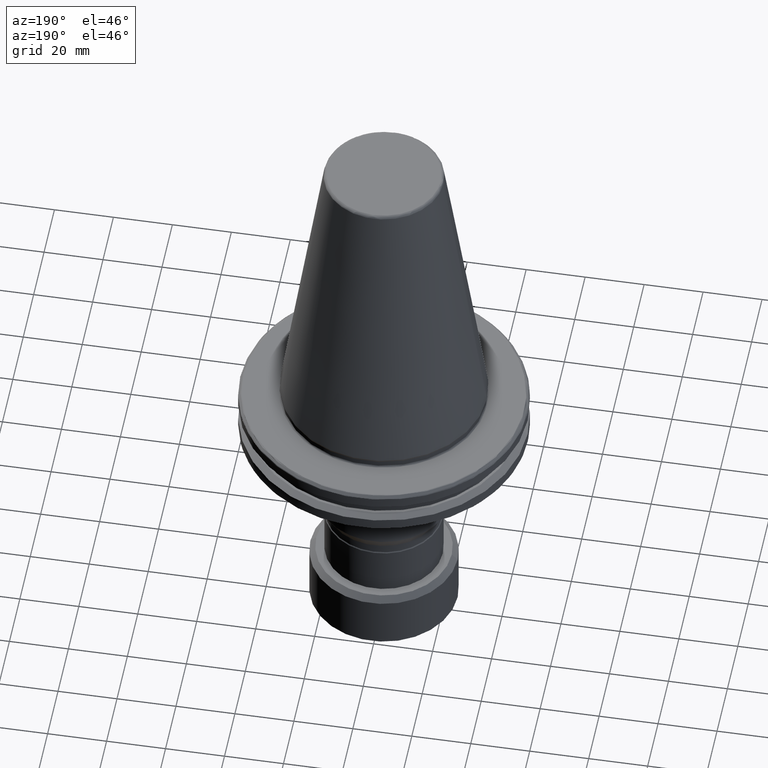
[diagram: clean part render]
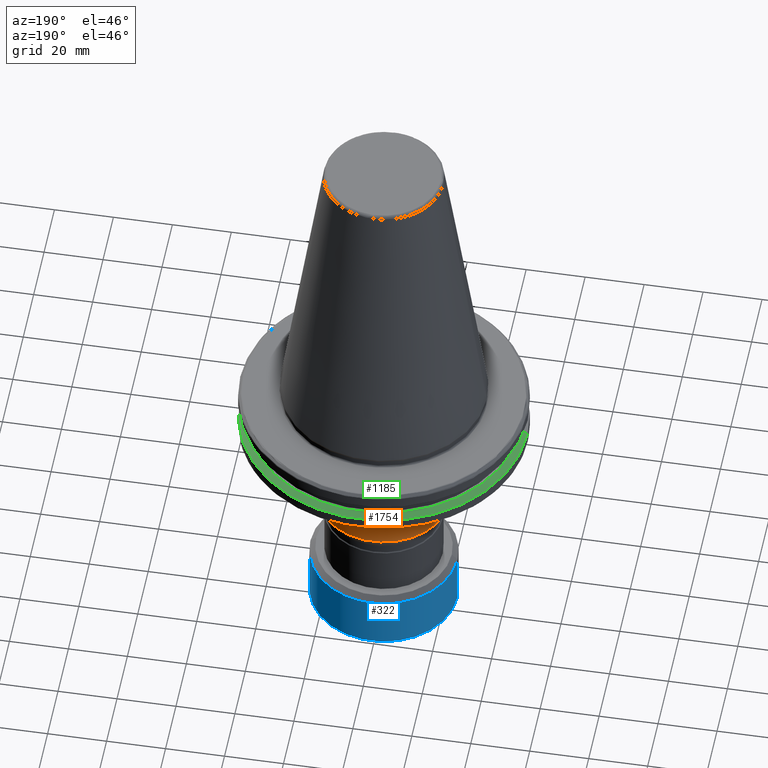
[diagram: same view with three faces highlighted in distinct colors, each labeled with its STEP entity id]
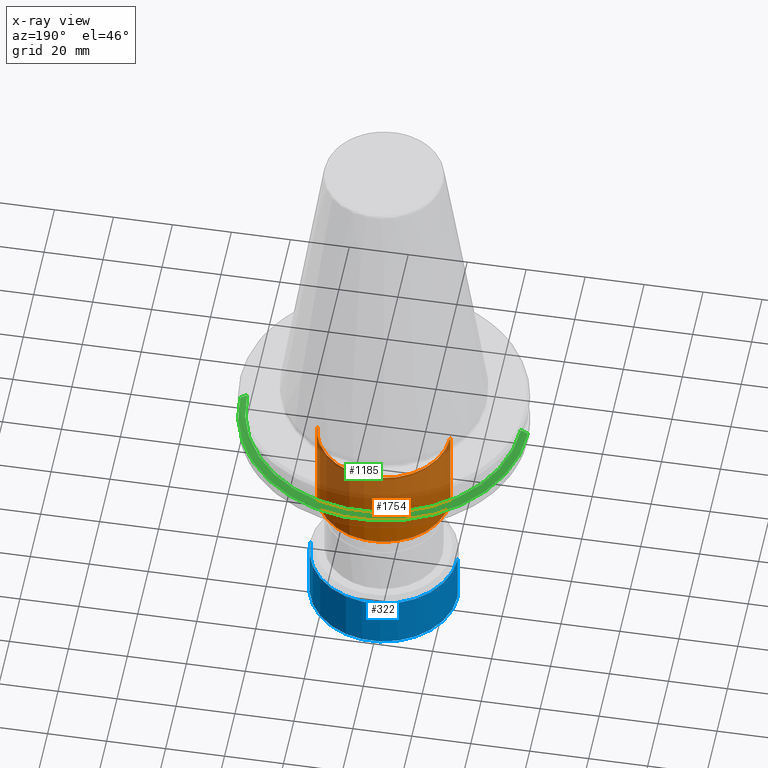
[diagram: x-ray of the same camera — body ghosted, the three highlighted faces saturated]
A machine part, auxiliary view with three faces highlighted in distinct colors.
The next image is the same camera in x-ray (body ghosted, the three faces saturated) — at least one of them is partly hidden behind the body in this view.
Their STEP definitions:

[orange] entity #1754 — the highlighted cylindrical surface (partial cylindrical patch) has radius 22.5 mm, axis along (0, 0, 1).
#187 = VERTEX_POINT ( 'NONE', #3113 ) ;
#190 = VECTOR ( 'NONE', #1882, 1000.000000000000000 ) ;
#224 = CARTESIAN_POINT ( 'NONE',  ( -22.49999999999999300, 2.755455298081543600E-015, -51.80795889508370100 ) ) ;
#272 = CIRCLE ( 'NONE', #1891, 22.49999999999999300 ) ;
#497 = VERTEX_POINT ( 'NONE', #940 ) ;
#641 = EDGE_LOOP ( 'NONE', ( #1877, #2033, #1112, #1954 ) ) ;
#699 = LINE ( 'NONE', #1826, #190 ) ;
#763 = EDGE_CURVE ( 'NONE', #3060, #187, #1778, .T. ) ;
#940 = CARTESIAN_POINT ( 'NONE',  ( 22.49999999999999300, 0.0000000000000000000, -51.80795889508370100 ) ) ;
#1076 = CARTESIAN_POINT ( 'NONE',  ( 0.0000000000000000000, 0.0000000000000000000, -51.80795889508370100 ) ) ;
#1097 = DIRECTION ( 'NONE',  ( -1.000000000000000000, 0.0000000000000000000, 0.0000000000000000000 ) ) ;
#1108 = DIRECTION ( 'NONE',  ( 0.0000000000000000000, 0.0000000000000000000, -1.000000000000000000 ) ) ;
#1112 = ORIENTED_EDGE ( 'NONE', *, *, #763, .T. ) ;
#1160 = VECTOR ( 'NONE', #1787, 1000.000000000000000 ) ;
#1232 = CARTESIAN_POINT ( 'NONE',  ( 0.0000000000000000000, 0.0000000000000000000, -21.10000000000000900 ) ) ;
#1247 = VERTEX_POINT ( 'NONE', #224 ) ;
#1260 = CARTESIAN_POINT ( 'NONE',  ( -22.49999999999999300, 2.755455298081543600E-015, -21.10000000000000900 ) ) ;
#1367 = DIRECTION ( 'NONE',  ( 1.000000000000000000, 0.0000000000000000000, 0.0000000000000000000 ) ) ;
#1499 = AXIS2_PLACEMENT_3D ( 'NONE', #2045, #2015, #2017 ) ;
#1754 = ADVANCED_FACE ( 'NONE', ( #2811 ), #2201, .T. ) ;
#1778 = CIRCLE ( 'NONE', #2359, 22.49999999999998900 ) ;
#1787 = DIRECTION ( 'NONE',  ( 0.0000000000000000000, 0.0000000000000000000, 1.000000000000000000 ) ) ;
#1826 = CARTESIAN_POINT ( 'NONE',  ( -22.49999999999999300, 2.755455298081543600E-015, 88.34764052968309000 ) ) ;
#1836 = CARTESIAN_POINT ( 'NONE',  ( 22.49999999999999300, 0.0000000000000000000, 88.34764052968309000 ) ) ;
#1877 = ORIENTED_EDGE ( 'NONE', *, *, #2900, .T. ) ;
#1882 = DIRECTION ( 'NONE',  ( 0.0000000000000000000, 0.0000000000000000000, 1.000000000000000000 ) ) ;
#1891 = AXIS2_PLACEMENT_3D ( 'NONE', #1076, #2964, #1367 ) ;
#1916 = EDGE_CURVE ( 'NONE', #1247, #3060, #699, .T. ) ;
#1937 = EDGE_CURVE ( 'NONE', #497, #187, #3132, .T. ) ;
#1954 = ORIENTED_EDGE ( 'NONE', *, *, #1937, .F. ) ;
#2015 = DIRECTION ( 'NONE',  ( 0.0000000000000000000, 0.0000000000000000000, 1.000000000000000000 ) ) ;
#2017 = DIRECTION ( 'NONE',  ( 1.000000000000000000, 0.0000000000000000000, 0.0000000000000000000 ) ) ;
#2033 = ORIENTED_EDGE ( 'NONE', *, *, #1916, .T. ) ;
#2045 = CARTESIAN_POINT ( 'NONE',  ( 0.0000000000000000000, 0.0000000000000000000, 88.34764052968309000 ) ) ;
#2201 = CYLINDRICAL_SURFACE ( 'NONE', #1499, 22.49999999999999300 ) ;
#2359 = AXIS2_PLACEMENT_3D ( 'NONE', #1232, #1108, #1097 ) ;
#2811 = FACE_OUTER_BOUND ( 'NONE', #641, .T. ) ;
#2900 = EDGE_CURVE ( 'NONE', #497, #1247, #272, .T. ) ;
#2964 = DIRECTION ( 'NONE',  ( 0.0000000000000000000, 0.0000000000000000000, 1.000000000000000000 ) ) ;
#3060 = VERTEX_POINT ( 'NONE', #1260 ) ;
#3113 = CARTESIAN_POINT ( 'NONE',  ( 22.49999999999999300, 0.0000000000000000000, -21.10000000000000900 ) ) ;
#3132 = LINE ( 'NONE', #1836, #1160 ) ;

[blue] entity #322 — the highlighted cylindrical surface (partial cylindrical patch) has radius 25 mm, axis along (0, 0, 1).
#322 = ADVANCED_FACE ( 'NONE', ( #2904 ), #3288, .T. ) ;
#371 = ORIENTED_EDGE ( 'NONE', *, *, #1617, .T. ) ;
#518 = EDGE_LOOP ( 'NONE', ( #2935, #371, #1082, #1556 ) ) ;
#528 = DIRECTION ( 'NONE',  ( 0.0000000000000000000, 0.0000000000000000000, 1.000000000000000000 ) ) ;
#611 = LINE ( 'NONE', #3074, #2686 ) ;
#719 = DIRECTION ( 'NONE',  ( 1.000000000000000000, 0.0000000000000000000, 0.0000000000000000000 ) ) ;
#800 = DIRECTION ( 'NONE',  ( 1.000000000000000000, 0.0000000000000000000, 0.0000000000000000000 ) ) ;
#830 = DIRECTION ( 'NONE',  ( 0.0000000000000000000, 0.0000000000000000000, 1.000000000000000000 ) ) ;
#833 = CARTESIAN_POINT ( 'NONE',  ( 0.0000000000000000000, 0.0000000000000000000, -97.11324865405191500 ) ) ;
#885 = AXIS2_PLACEMENT_3D ( 'NONE', #1496, #987, #719 ) ;
#987 = DIRECTION ( 'NONE',  ( 0.0000000000000000000, 0.0000000000000000000, 1.000000000000000000 ) ) ;
#1016 = EDGE_CURVE ( 'NONE', #1819, #1495, #2112, .T. ) ;
#1046 = VECTOR ( 'NONE', #528, 1000.000000000000000 ) ;
#1082 = ORIENTED_EDGE ( 'NONE', *, *, #1016, .F. ) ;
#1238 = CARTESIAN_POINT ( 'NONE',  ( 25.00000000000000000, 0.0000000000000000000, 181.9423428149682400 ) ) ;
#1277 = DIRECTION ( 'NONE',  ( -1.000000000000000000, 0.0000000000000000000, 0.0000000000000000000 ) ) ;
#1286 = DIRECTION ( 'NONE',  ( -0.0000000000000000000, -0.0000000000000000000, 1.000000000000000000 ) ) ;
#1289 = CARTESIAN_POINT ( 'NONE',  ( 0.0000000000000000000, 0.0000000000000000000, -78.99999999999995700 ) ) ;
#1495 = VERTEX_POINT ( 'NONE', #3249 ) ;
#1496 = CARTESIAN_POINT ( 'NONE',  ( 0.0000000000000000000, 0.0000000000000000000, 181.9423428149682400 ) ) ;
#1556 = ORIENTED_EDGE ( 'NONE', *, *, #3476, .F. ) ;
#1597 = VERTEX_POINT ( 'NONE', #3184 ) ;
#1617 = EDGE_CURVE ( 'NONE', #1597, #1495, #611, .T. ) ;
#1644 = LINE ( 'NONE', #1238, #1046 ) ;
#1775 = VERTEX_POINT ( 'NONE', #1979 ) ;
#1819 = VERTEX_POINT ( 'NONE', #1933 ) ;
#1933 = CARTESIAN_POINT ( 'NONE',  ( 25.00000000000000000, 0.0000000000000000000, -78.99999999999995700 ) ) ;
#1979 = CARTESIAN_POINT ( 'NONE',  ( 25.00000000000000000, 0.0000000000000000000, -97.11324865405191500 ) ) ;
#1999 = AXIS2_PLACEMENT_3D ( 'NONE', #1289, #1286, #1277 ) ;
#2112 = CIRCLE ( 'NONE', #1999, 25.00000000000000000 ) ;
#2239 = EDGE_CURVE ( 'NONE', #1775, #1597, #3096, .T. ) ;
#2454 = AXIS2_PLACEMENT_3D ( 'NONE', #833, #830, #800 ) ;
#2686 = VECTOR ( 'NONE', #3223, 1000.000000000000000 ) ;
#2904 = FACE_OUTER_BOUND ( 'NONE', #518, .T. ) ;
#2935 = ORIENTED_EDGE ( 'NONE', *, *, #2239, .T. ) ;
#3074 = CARTESIAN_POINT ( 'NONE',  ( -25.00000000000000000, 3.061616997868383000E-015, 181.9423428149682400 ) ) ;
#3096 = CIRCLE ( 'NONE', #2454, 25.00000000000000000 ) ;
#3184 = CARTESIAN_POINT ( 'NONE',  ( -25.00000000000000000, 3.061616997868383000E-015, -97.11324865405191500 ) ) ;
#3223 = DIRECTION ( 'NONE',  ( 0.0000000000000000000, 0.0000000000000000000, 1.000000000000000000 ) ) ;
#3249 = CARTESIAN_POINT ( 'NONE',  ( -25.00000000000000000, 3.061616997868383000E-015, -78.99999999999995700 ) ) ;
#3288 = CYLINDRICAL_SURFACE ( 'NONE', #885, 25.00000000000000000 ) ;
#3476 = EDGE_CURVE ( 'NONE', #1775, #1819, #1644, .T. ) ;

[green] entity #1185 — the highlighted conical surface has half-angle 60 deg.
#22 = CARTESIAN_POINT ( 'NONE',  ( 46.41589653438084900, 5.827230528940886100E-015, -12.99999999999999500 ) ) ;
#36 = VERTEX_POINT ( 'NONE', #22 ) ;
#180 = EDGE_CURVE ( 'NONE', #1635, #1487, #1749, .T. ) ;
#346 = DIRECTION ( 'NONE',  ( -0.0000000000000000000, -0.0000000000000000000, -1.000000000000000000 ) ) ;
#349 = CARTESIAN_POINT ( 'NONE',  ( 0.0000000000000000000, 0.0000000000000000000, -14.34759526419164500 ) ) ;
#353 = EDGE_CURVE ( 'NONE', #1032, #1635, #2821, .T. ) ;
#389 = DIRECTION ( 'NONE',  ( -1.000000000000000000, 0.0000000000000000000, 0.0000000000000000000 ) ) ;
#464 = AXIS2_PLACEMENT_3D ( 'NONE', #349, #346, #2337 ) ;
#567 = VECTOR ( 'NONE', #923, 1000.000000000000000 ) ;
#593 = AXIS2_PLACEMENT_3D ( 'NONE', #2428, #791, #2687 ) ;
#791 = DIRECTION ( 'NONE',  ( 0.0000000000000000000, 0.0000000000000000000, -1.000000000000000000 ) ) ;
#923 = DIRECTION ( 'NONE',  ( 0.8660254037844393700, 1.060575238724907800E-016, -0.4999999999999987200 ) ) ;
#925 = CONICAL_SURFACE ( 'NONE', #3196, 48.75000000000000000, 1.047197551196599200 ) ;
#933 = CARTESIAN_POINT ( 'NONE',  ( 48.75000000000000000, 5.970153145843347100E-015, -14.34759526419164500 ) ) ;
#1032 = VERTEX_POINT ( 'NONE', #1460 ) ;
#1081 = DIRECTION ( 'NONE',  ( -0.8660254037844393700, 0.0000000000000000000, -0.4999999999999987200 ) ) ;
#1185 = ADVANCED_FACE ( 'NONE', ( #1203 ), #925, .T. ) ;
#1203 = FACE_OUTER_BOUND ( 'NONE', #2373, .T. ) ;
#1460 = CARTESIAN_POINT ( 'NONE',  ( -46.41589653438084900, 0.0000000000000000000, -12.99999999999999500 ) ) ;
#1487 = VERTEX_POINT ( 'NONE', #3242 ) ;
#1635 = VERTEX_POINT ( 'NONE', #3051 ) ;
#1637 = DIRECTION ( 'NONE',  ( 0.0000000000000000000, 0.0000000000000000000, -1.000000000000000000 ) ) ;
#1723 = ORIENTED_EDGE ( 'NONE', *, *, #180, .F. ) ;
#1749 = CIRCLE ( 'NONE', #464, 48.75000000000000000 ) ;
#2069 = CARTESIAN_POINT ( 'NONE',  ( 0.0000000000000000000, 0.0000000000000000000, -14.34759526419164500 ) ) ;
#2231 = EDGE_CURVE ( 'NONE', #36, #1487, #2330, .T. ) ;
#2330 = LINE ( 'NONE', #933, #567 ) ;
#2337 = DIRECTION ( 'NONE',  ( 1.000000000000000000, 0.0000000000000000000, 0.0000000000000000000 ) ) ;
#2373 = EDGE_LOOP ( 'NONE', ( #3468, #3381, #1723, #3181 ) ) ;
#2428 = CARTESIAN_POINT ( 'NONE',  ( 0.0000000000000000000, 0.0000000000000000000, -12.99999999999999500 ) ) ;
#2687 = DIRECTION ( 'NONE',  ( -1.000000000000000000, 0.0000000000000000000, 0.0000000000000000000 ) ) ;
#2700 = VECTOR ( 'NONE', #1081, 1000.000000000000000 ) ;
#2736 = CARTESIAN_POINT ( 'NONE',  ( -48.75000000000000000, 0.0000000000000000000, -14.34759526419164500 ) ) ;
#2821 = LINE ( 'NONE', #2736, #2700 ) ;
#2830 = CIRCLE ( 'NONE', #593, 46.41589653438084900 ) ;
#2876 = EDGE_CURVE ( 'NONE', #1032, #36, #2830, .T. ) ;
#3051 = CARTESIAN_POINT ( 'NONE',  ( -48.75000000000000000, 0.0000000000000000000, -14.34759526419164500 ) ) ;
#3181 = ORIENTED_EDGE ( 'NONE', *, *, #353, .F. ) ;
#3196 = AXIS2_PLACEMENT_3D ( 'NONE', #2069, #1637, #389 ) ;
#3242 = CARTESIAN_POINT ( 'NONE',  ( 48.75000000000000000, 5.970153145843347100E-015, -14.34759526419164500 ) ) ;
#3381 = ORIENTED_EDGE ( 'NONE', *, *, #2231, .T. ) ;
#3468 = ORIENTED_EDGE ( 'NONE', *, *, #2876, .T. ) ;